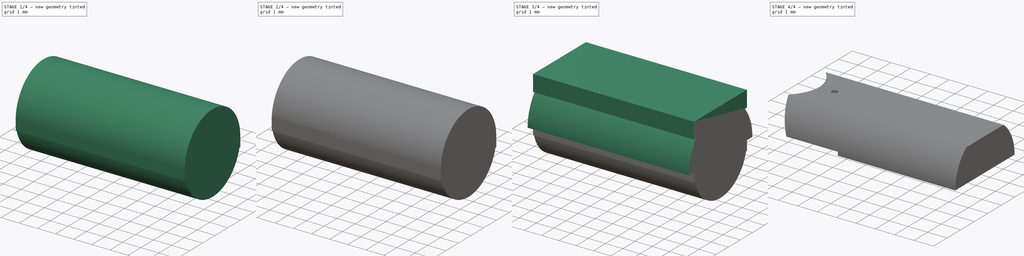
[diagram: build sequence overview — one tinted view per stage of 4, left to right]
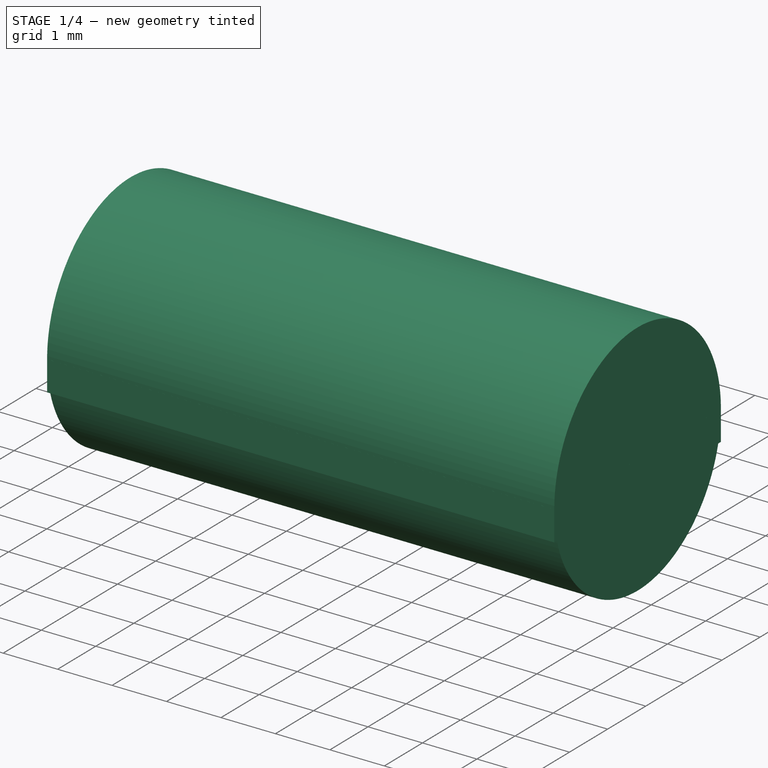
[diagram: stage 1 of 4 — iso view after this stage's code; geometry added in this stage tinted green]
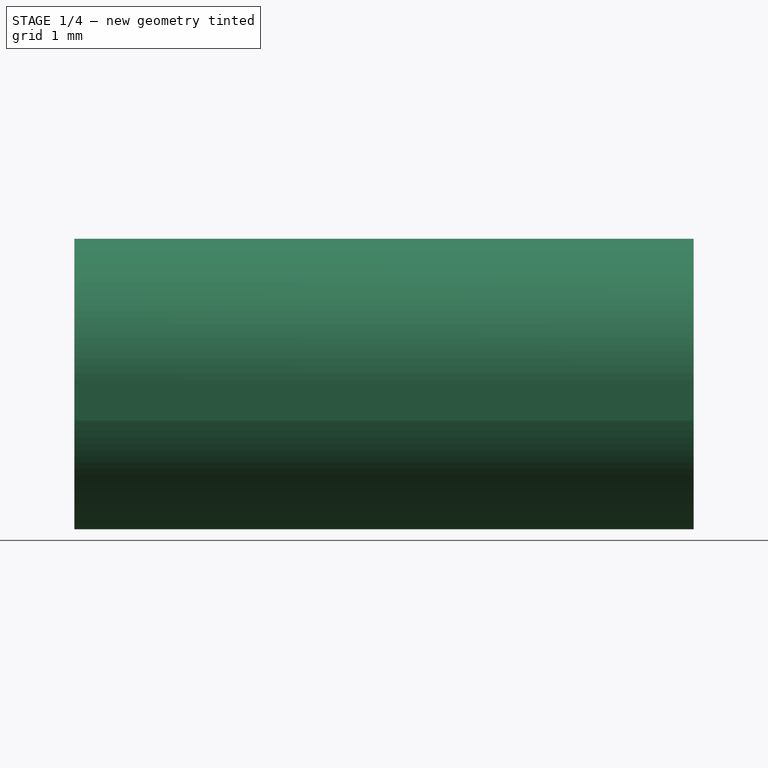
[diagram: stage 1 of 4 — front view after this stage's code; geometry added in this stage tinted green]
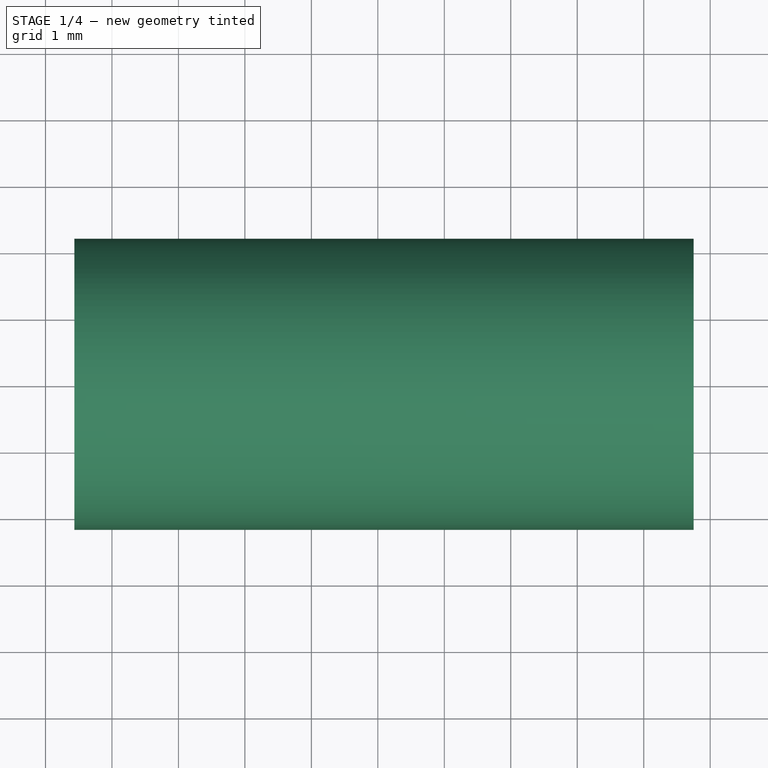
[diagram: stage 1 of 4 — top view after this stage's code; geometry added in this stage tinted green]
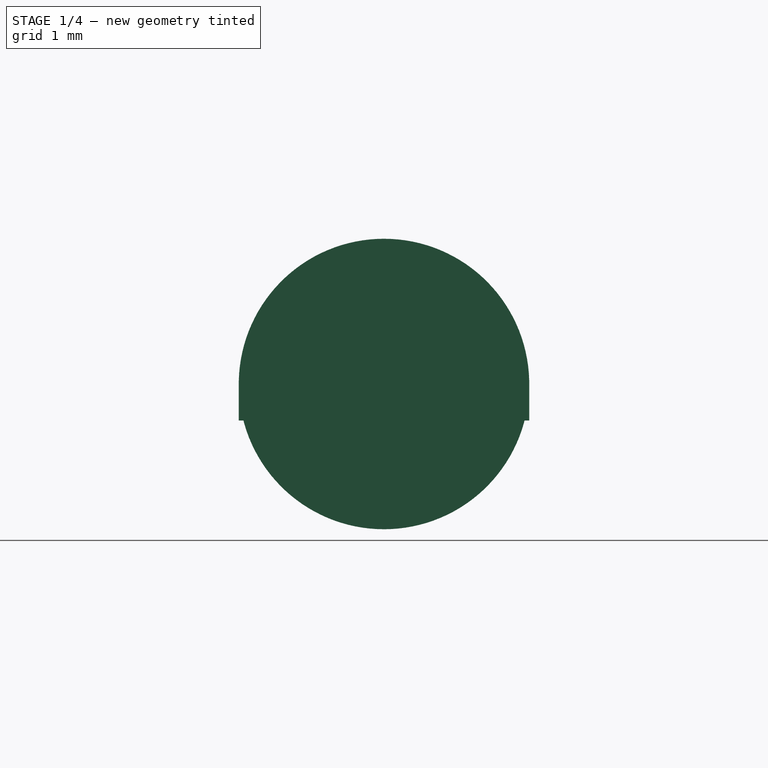
[diagram: stage 1 of 4 — right view after this stage's code; geometry added in this stage tinted green]
FCSTD DOCUMENT  (FreeCAD 0.20R)
Label: parabolic_base
License: All rights reserved
LicenseURL: http://en.wikipedia.org/wiki/All_rights_reserved
objects: Part::Box×3, Part::Cylinder×2, Spreadsheet::Sheet×1, Sketcher::SketchObject×1, PartDesign::Revolution×1, PartDesign::Body×1, Part::MultiFuse×1, Part::Cut×1, Part::MultiCommon×1
note: 12 computed .brp shape members not serialized (recipe doc carries the construction recipe); baked Part::Feature solids carry a one-line shape summary decoded from their .brp

FEATURE [Part::Box] Box002  label="ZPosCorrectionCuttingTool"
  AttacherType = Attacher::AttachEngine3D
  Height = 0.55
  Length = 9.31441
  Placement = pos=(-1.56441,-2.185,-0.55) rot=(0,0,1;0rad)
  Width = 4.37
  expr: .Placement.Base.x = -1 * (<<MirrorParameters>>.parabola_section_length_uncut + <<MirrorParameters>>.tot_length - <<MirrorParameters>>.center_offset - <<MirrorParameters>>.focal_length - <<MirrorParameters>>.tot_length)
  expr: .Placement.Base.y = <<MirrorParameters>>.max_width / -2
  expr: .Placement.Base.z = -<<MirrorParameters>>.zpos_correction - 0.1
  expr: Height = <<MirrorParameters>>.zpos_correction + 0.1
  expr: Length = <<MirrorParameters>>.parabola_section_length_uncut + <<MirrorParameters>>.tot_length
  expr: Width = <<MirrorParameters>>.max_width
FEATURE [Part::Cylinder] Cylinder001  label="VolumeLimit"
  Angle = 360
  AttacherType = Attacher::AttachEngine3D
  FirstAngle = 0
  Height = 9.31441
  Placement = pos=(-1.56441,0,0) rot=(0,1,0;1.5708rad)
  Radius = 2.185
  SecondAngle = 0
  expr: .Placement.Base.x = <<MirrorParameters>>.focal_length + <<MirrorParameters>>.center_offset - <<MirrorParameters>>.parabola_section_length_uncut
  expr: Height = <<MirrorParameters>>.tot_length + <<MirrorParameters>>.parabola_section_length_uncut
  expr: Radius = <<MirrorParameters>>.max_width / 2
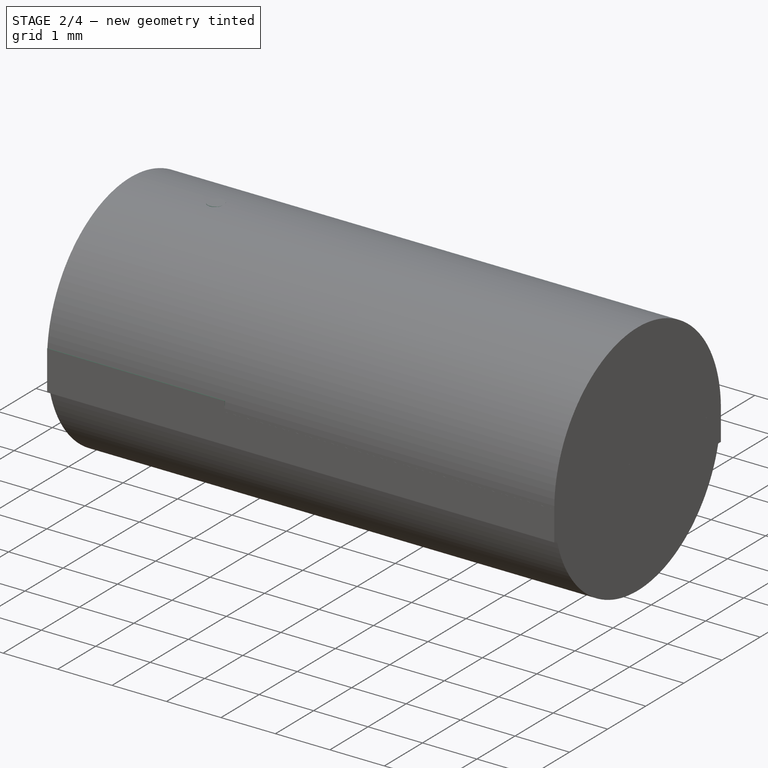
[diagram: stage 2 of 4 — iso view after this stage's code; geometry added in this stage tinted green]
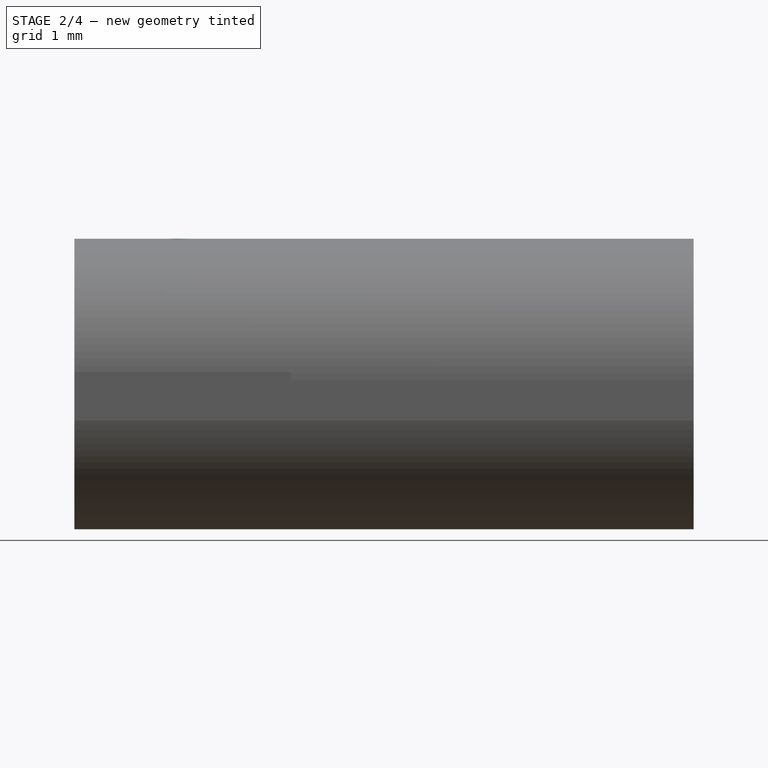
[diagram: stage 2 of 4 — front view after this stage's code; geometry added in this stage tinted green]
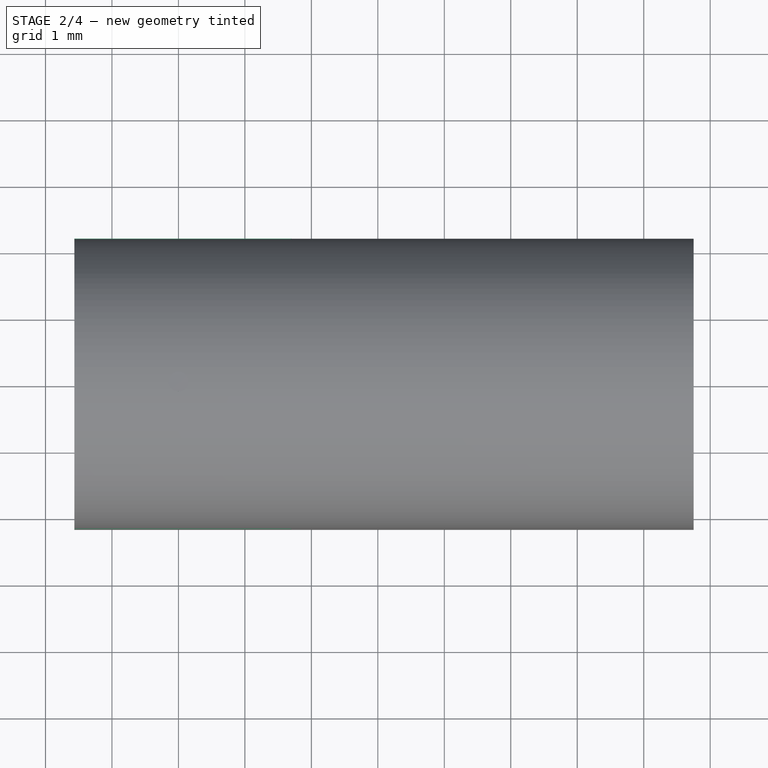
[diagram: stage 2 of 4 — top view after this stage's code; geometry added in this stage tinted green]
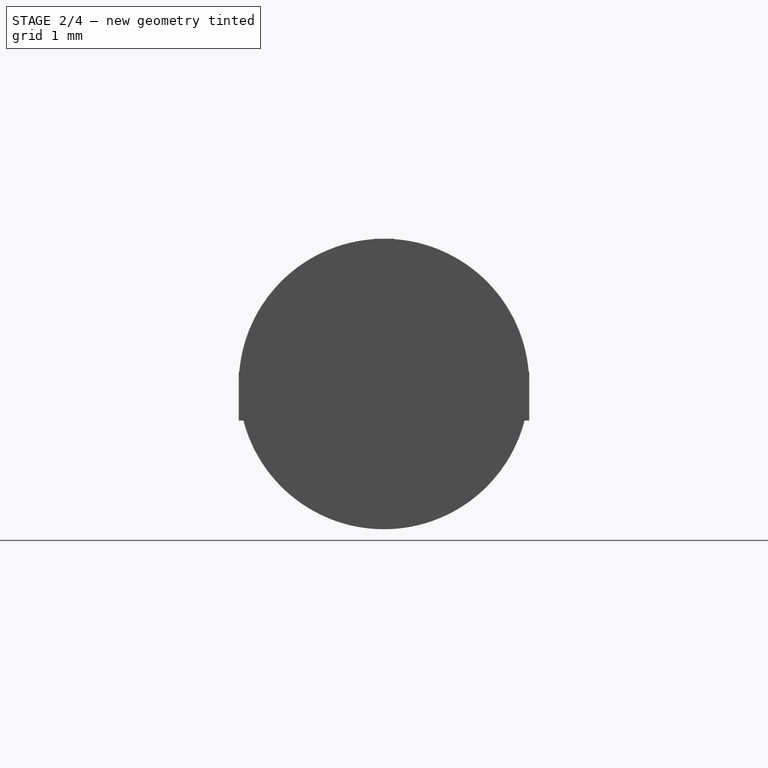
[diagram: stage 2 of 4 — right view after this stage's code; geometry added in this stage tinted green]
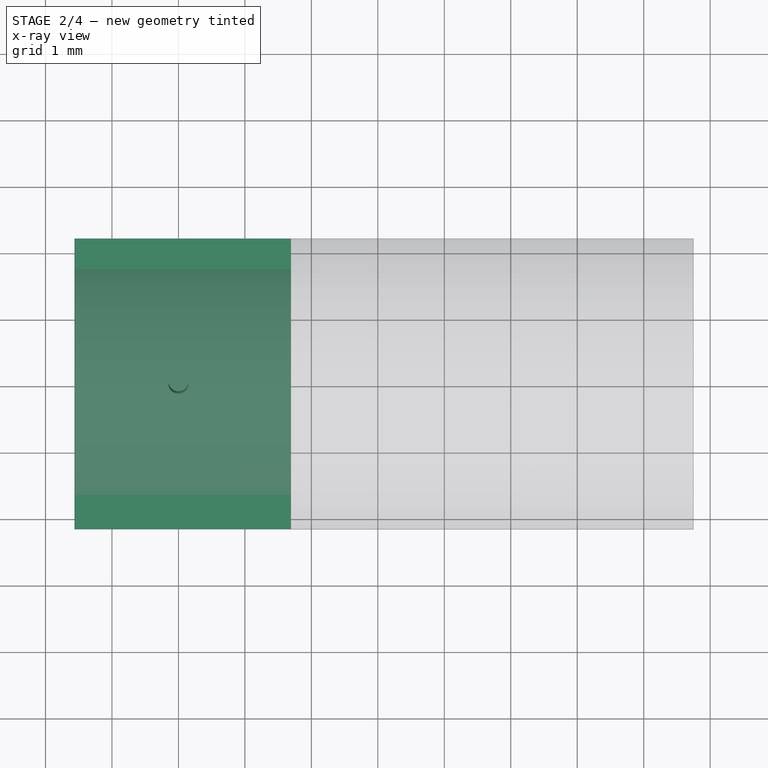
[diagram: stage 2 of 4 — x-ray composite at the top view; earlier geometry ghosted, this stage's added geometry solid]
FEATURE [Part::Box] Box001  label="LowerStepCuttingTool"
  AttacherType = Attacher::AttachEngine3D
  Height = 0.63
  Length = 3.25941
  Placement = pos=(-1.56441,-2.185,-0.45) rot=(0,0,1;0rad)
  Width = 4.37
  expr: .Placement.Base.x = <<MirrorParameters>>.focal_length + <<MirrorParameters>>.center_offset - <<MirrorParameters>>.parabola_section_length_uncut
  expr: .Placement.Base.y = -<<MirrorParameters>>.max_width / 2
  expr: .Placement.Base.z = -<<MirrorParameters>>.zpos_correction
  expr: Height = <<MirrorParameters>>.step_height + <<MirrorParameters>>.zpos_correction
  expr: Length = <<MirrorParameters>>.sample_hole_diameter / 2 - <<MirrorParameters>>.height_to_width_offset
  expr: Width = <<MirrorParameters>>.max_width
FEATURE [Part::Cylinder] Cylinder  label="BeamholeCuttingTool"
  Angle = 360
  AttacherType = Attacher::AttachEngine3D
  FirstAngle = 0
  Height = 2.185
  Radius = 0.15
  SecondAngle = 0
  expr: .Placement.Base.x = -<<MirrorParameters>>.center_offset
  expr: Height = <<MirrorParameters>>.max_width / 2
  expr: Radius = <<MirrorParameters>>.beamhole_diameter / 2
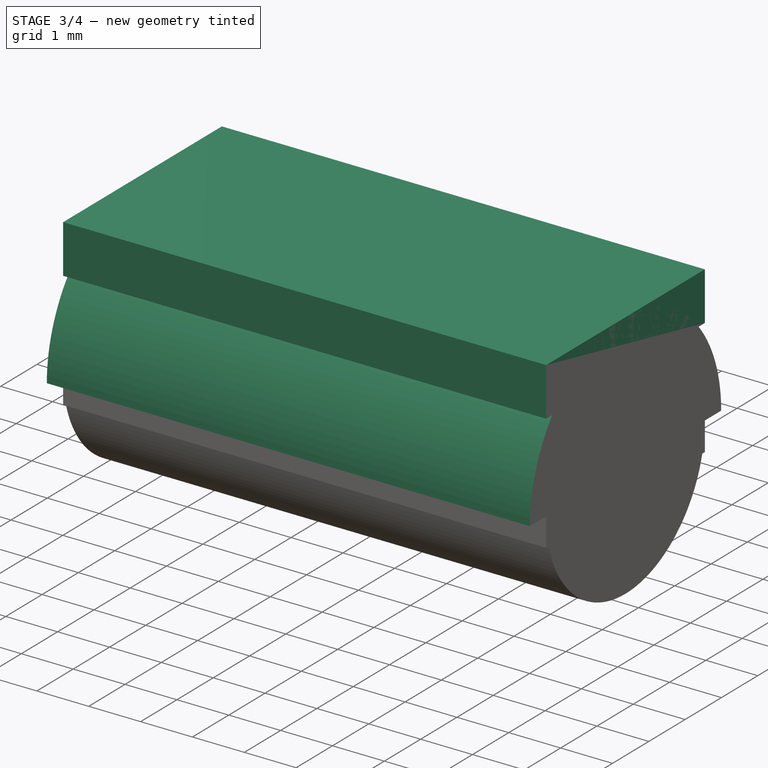
[diagram: stage 3 of 4 — iso view after this stage's code; geometry added in this stage tinted green]
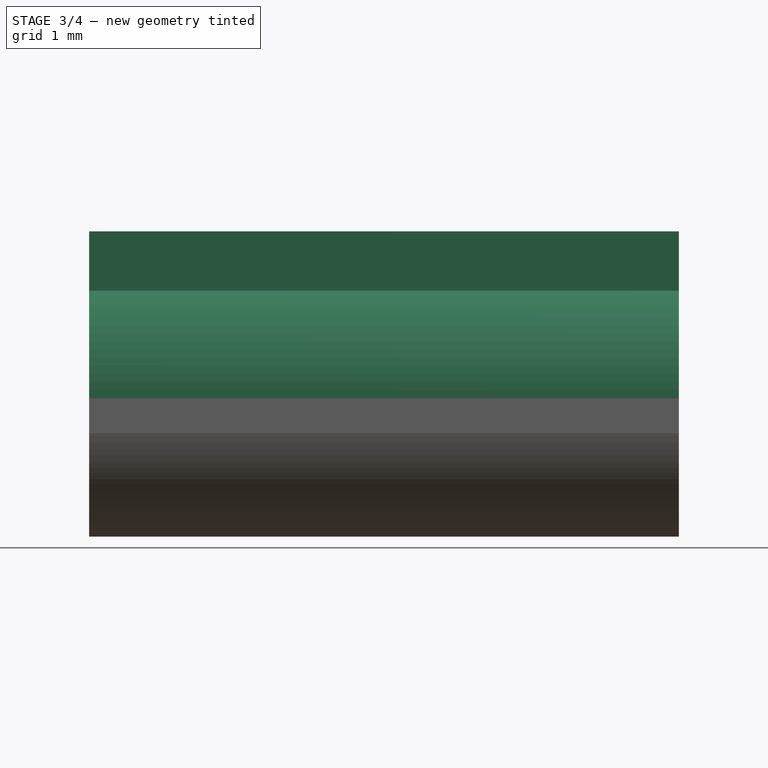
[diagram: stage 3 of 4 — front view after this stage's code; geometry added in this stage tinted green]
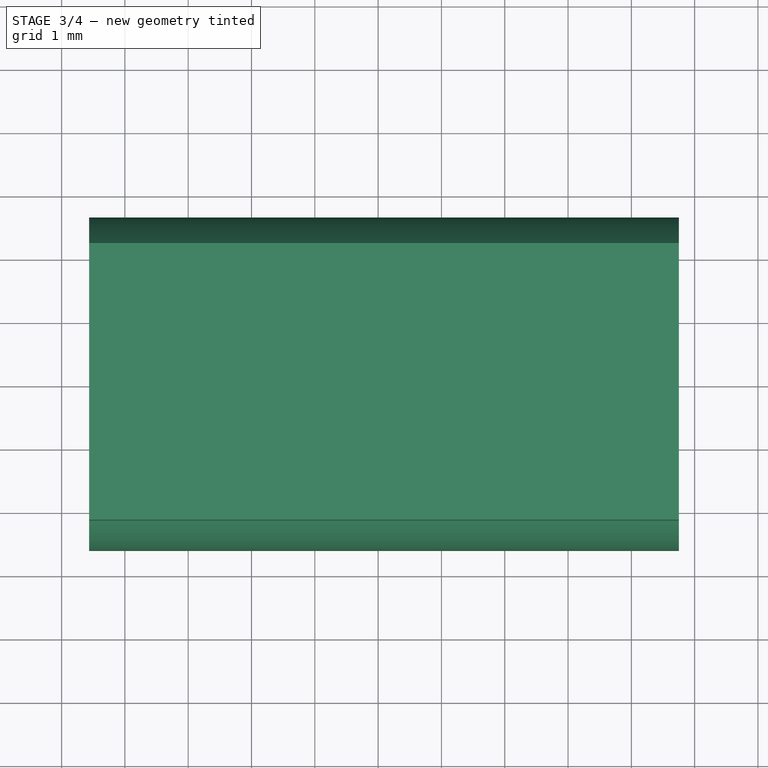
[diagram: stage 3 of 4 — top view after this stage's code; geometry added in this stage tinted green]
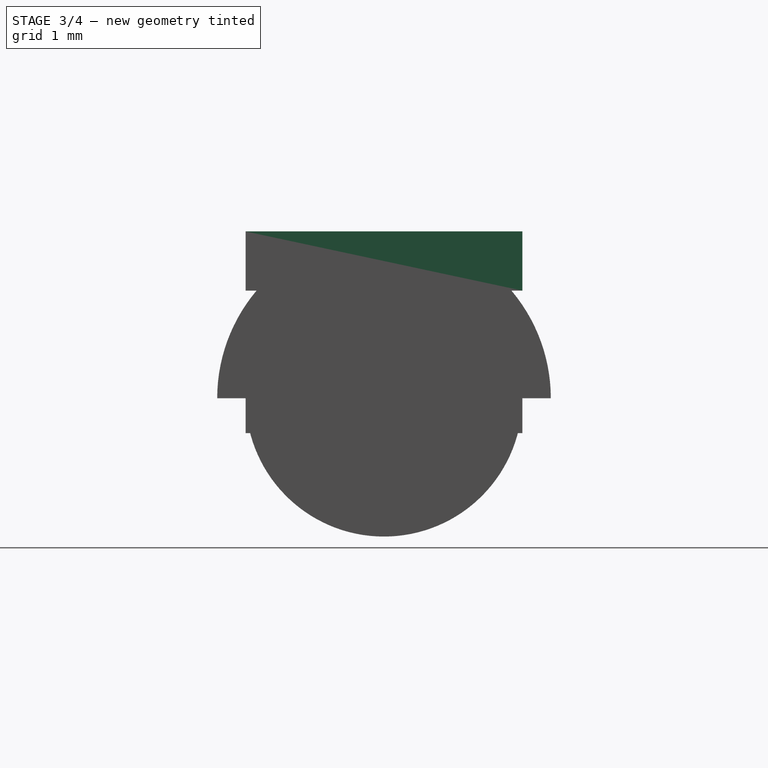
[diagram: stage 3 of 4 — right view after this stage's code; geometry added in this stage tinted green]
FEATURE [Spreadsheet::Sheet] Spreadsheet  label="MirrorParameters"
  cells = A1=Design parameters; E1=Calculated parameters; A2=Focal length; B2(focal_length)=0.75; C2=Focal length of the mirror; E2=Parabola section length; F2(parabola_section_length_uncut)==(max_width / 2 + zpos_correction) ^ 2 / (4 * focal_length); G2=Length of the parabola section (when maximum height matches maximum width); A3=Solid body length; B3(tot_length)=7; C3=Length of the solid starting at the parabola vertex; E3=Offset width to height; F3(height_to_width_offset)==-1 / (4 * focal_length) * (max_width / 2 + zpos_correction) ^ 2 + focal_length + center_offset; G3=Difference of maximum height and maximum width position along x axis by cutting on top; A4=Maximum height; B4(max_height)=1.7; C4=Maximum height (y axis) of the mirror. The mirror gets cut at this maximum; E4=Remaining material at beamhole; F4==parabola_section_length_uncut - focal_length - center_offset - beamhole_diameter / 2; G4=Width of the remaining material at the beamhole; A5=Maximum width; B5(max_width)=4.37; C5=Maximum width (diameter) of the mirror; E5=Height to width difference; F5==max_width / 2 - max_height; G5=The thickness of the material removed on top; A6=Center offset; B6(center_offset)=0; C6=Offset between center of beamhole and focal point (Shifts the focal point w.r.t. beam hole towards holder structure); A7=Sample hole diameter; B7(sample_hole_diameter)=3.39; C7=Diameter of the sample hole in the sample holder itself; A8=Beamhole diameter; B8(beamhole_diameter)=0.3; C8=Diameter for beamhole (has to match one of the drills); A9=Step height; B9(step_height)=0.18; C9=Height of the step to align with an alignment feature on the holder; A10=Z Positon correction / Offset (downwards) ; B10(zpos_correction)=0.45; C10=Shifts the mirror vertex by this correction downwards (without affecting the step); A12=Note: Do not forget to recalculate the Revolution/Sketch object after changing parameters or it will only affect the part!
FEATURE [Sketcher::SketchObject] Sketch  label="ParabolicSketch"
  FullyConstrained = false
  MapMode = 5
  Support = -> [XY_Plane001]
  expr: .Constraints.BodyLength = <<MirrorParameters>>.tot_length
  expr: .Constraints.CenterOffset = <<MirrorParameters>>.center_offset
  expr: .Constraints.FocalLength = <<MirrorParameters>>.focal_length
  expr: Constraints[9] = <<MirrorParameters>>.max_width / 2 + <<MirrorParameters>>.zpos_correction
  sketch-geometry (8):
    g0: GeomPoint X=0 Y=0 Z=0
    g1: GeomPoint X=0.75 Y=0 Z=0
    g2: LineSegment StartX=0.75 StartY=0 StartZ=0 EndX=7.75 EndY=0 EndZ=0
    g3: LineSegment StartX=7.75 StartY=0 StartZ=0 EndX=7.75 EndY=2.635 EndZ=0
    g4: ArcOfParabola CenterX=0.75 CenterY=0 CenterZ=0 NormalX=0 NormalY=0 NormalZ=1 Focal=0.75 AngleXU=3.14159 StartAngle=-2.635 EndAngle=0
    g5: GeomPoint X=0 Y=0 Z=0
    g6: LineSegment StartX=0.75 StartY=0 StartZ=0 EndX=0 EndY=0 EndZ=0
    g7: LineSegment StartX=-1.56441 StartY=2.635 StartZ=0 EndX=7.75 EndY=2.635 EndZ=0
  constraints (17):
    c: PointOnObject(g0,g-1)
    c: PointOnObject(g1,g-1)
    c: DistanceX(g-1,g0) = 0  'CenterOffset'
    c: DistanceX(g0,g1) = 0.75  'FocalLength'
    c: Coincident(g2,g1)
    c: PointOnObject(g2,g-1)
    c: Coincident(g3,g2)
    c: Vertical(g3)
    c: DistanceX(g2,g2) = 7  'BodyLength'
    c: DistanceY(g2,g3) = 2.635
    c: InternalAlignment(g5,g4)
    c: Coincident(g5,g0)
    c: Coincident(g4,g2)
    c: Coincident(g4,g2)
    c: Coincident(g7,g4)
    c: Coincident(g7,g3)
    c: Horizontal(g7)
FEATURE [PartDesign::Revolution] Revolution
  Angle = 180
  Axis = (1,0,0)
  Base = (0,0,0)
  Profile = -> Sketch
  ReferenceAxis = -> X_Axis001
FEATURE [PartDesign::Body] Body001  label="ParabolicBaseMirror"
  Group = -> [Sketch,Revolution]
  Origin = -> Origin001
  Placement = pos=(0,0,-0.45) rot=(0,0,1;0rad)
  Tip = -> Revolution
  expr: .Placement.Base.z = -<<MirrorParameters>>.zpos_correction
FEATURE [Part::Box] Box  label="UpperEdgeCuttingTool"
  AttacherType = Attacher::AttachEngine3D
  Height = 0.935
  Length = 9.31441
  Placement = pos=(-1.56441,-2.185,1.7) rot=(0,0,1;0rad)
  Width = 4.37
  expr: .Placement.Base.x = -1 * (<<MirrorParameters>>.parabola_section_length_uncut + <<MirrorParameters>>.tot_length - <<MirrorParameters>>.center_offset - <<MirrorParameters>>.focal_length - <<MirrorParameters>>.tot_length)
  expr: .Placement.Base.y = <<MirrorParameters>>.max_width / -2
  expr: .Placement.Base.z = <<MirrorParameters>>.max_height
  expr: Height = <<MirrorParameters>>.max_width / 2 - <<MirrorParameters>>.max_height + <<MirrorParameters>>.zpos_correction
  expr: Length = <<MirrorParameters>>.parabola_section_length_uncut + <<MirrorParameters>>.tot_length
  expr: Width = <<MirrorParameters>>.max_width
FEATURE [Part::MultiFuse] Fusion  label="CuttingTools"
  Shapes = -> [Cylinder,Box,Box001,Box002]
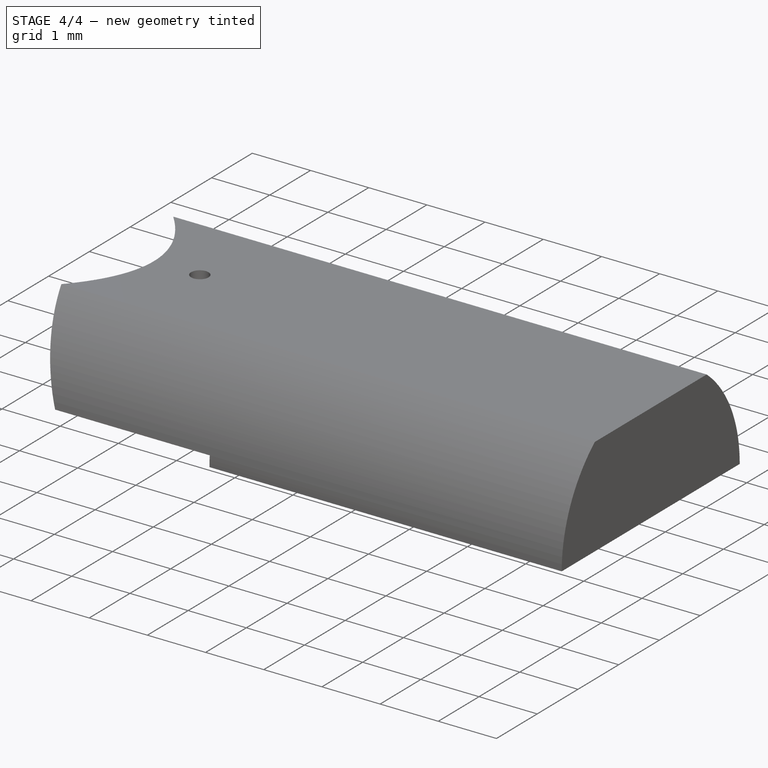
[diagram: stage 4 of 4 — iso view after this stage's code; geometry added in this stage tinted green]
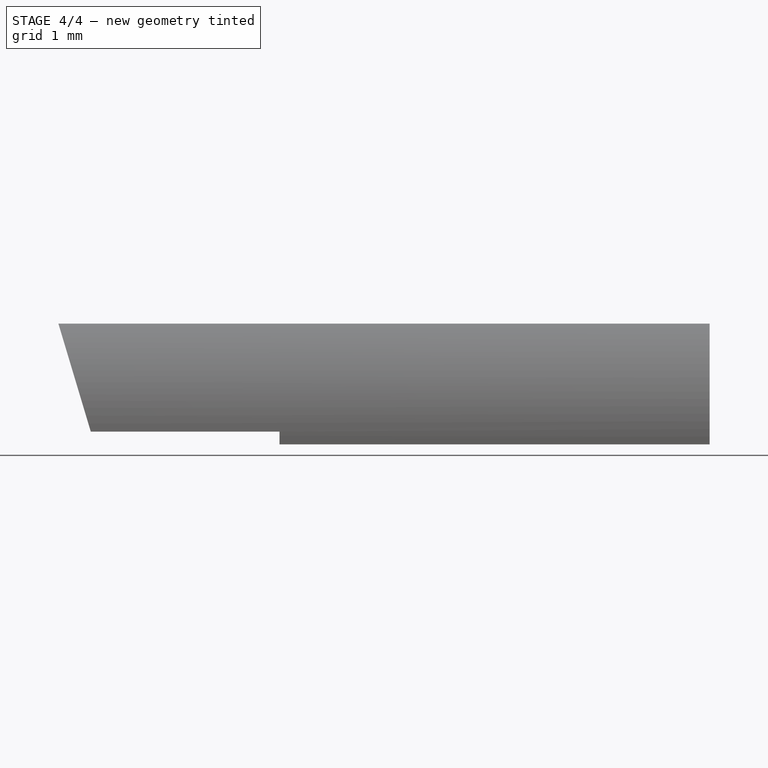
[diagram: stage 4 of 4 — front view after this stage's code; geometry added in this stage tinted green]
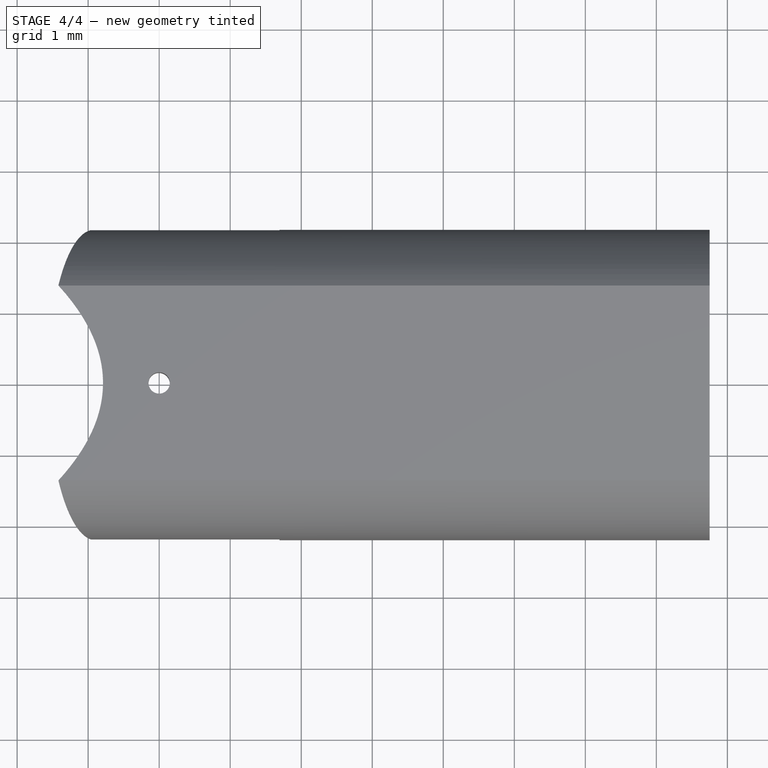
[diagram: stage 4 of 4 — top view after this stage's code; geometry added in this stage tinted green]
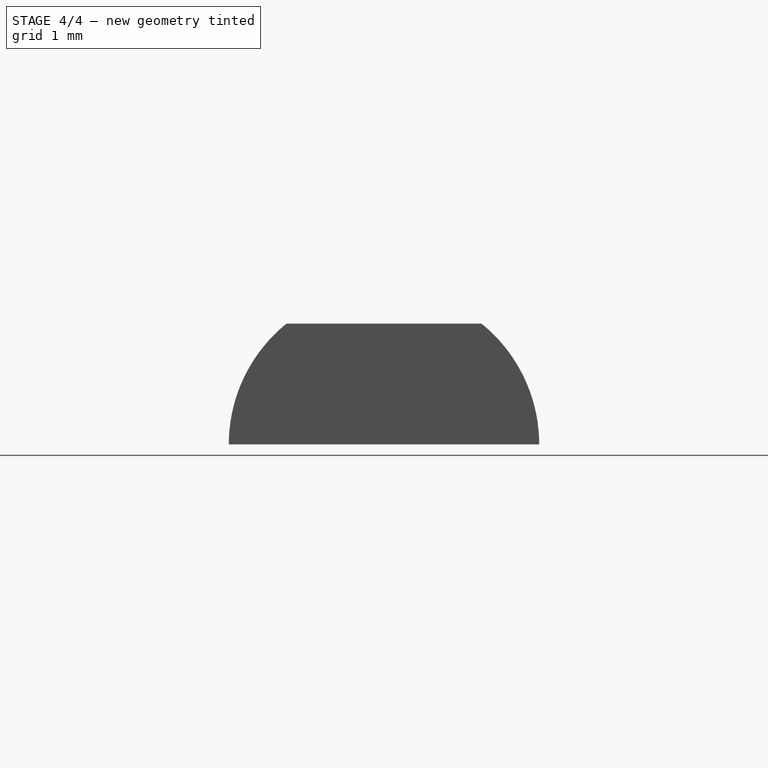
[diagram: stage 4 of 4 — right view after this stage's code; geometry added in this stage tinted green]
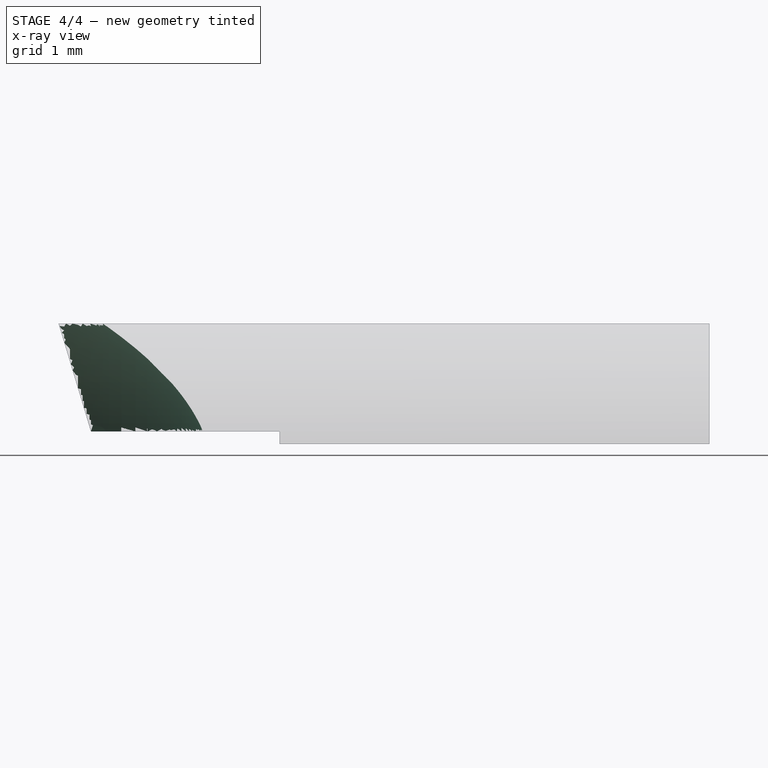
[diagram: stage 4 of 4 — x-ray composite at the front view; earlier geometry ghosted, this stage's added geometry solid]
FEATURE [Part::Cut] Cut  label="MirrorWithoutMount_NoLimit"
  Base = -> Body001
  Tool = -> Fusion
FEATURE [Part::MultiCommon] Common  label="MirrorWithoutMount"
  Shapes = -> [Cut,Cylinder001]
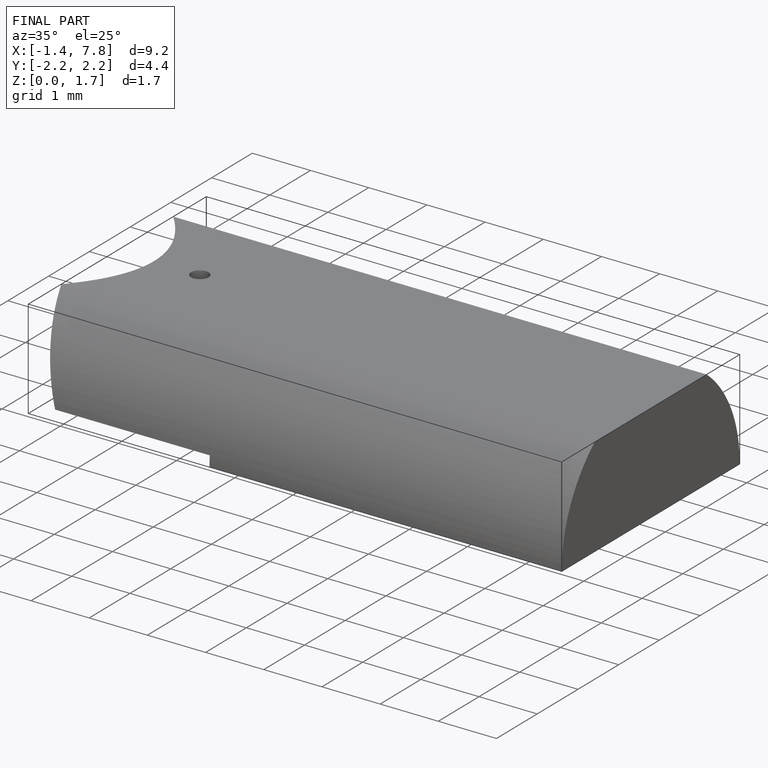
[diagram: finished part — iso view with bounding-box wireframe]
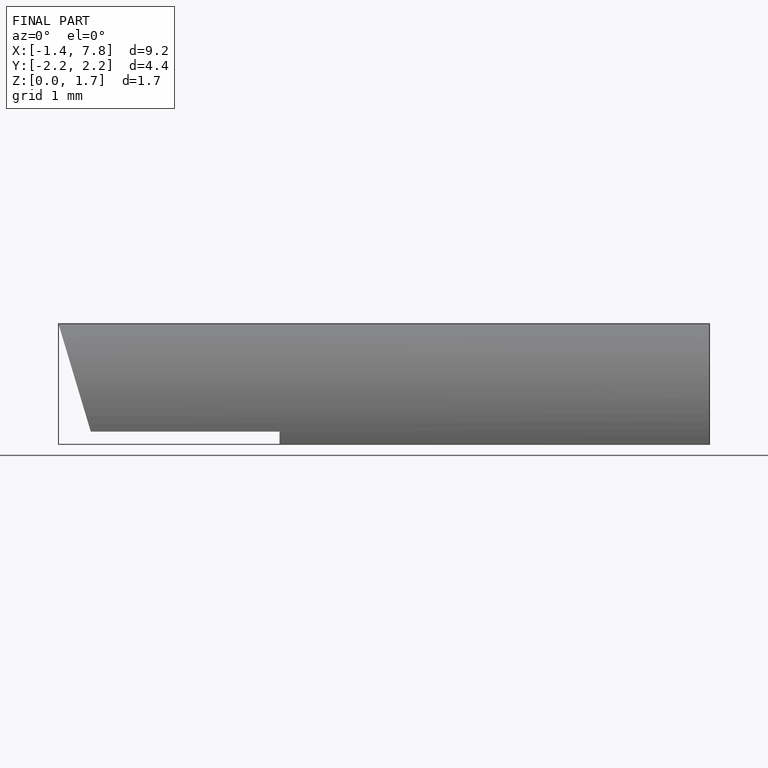
[diagram: finished part — front view with bounding-box wireframe]
